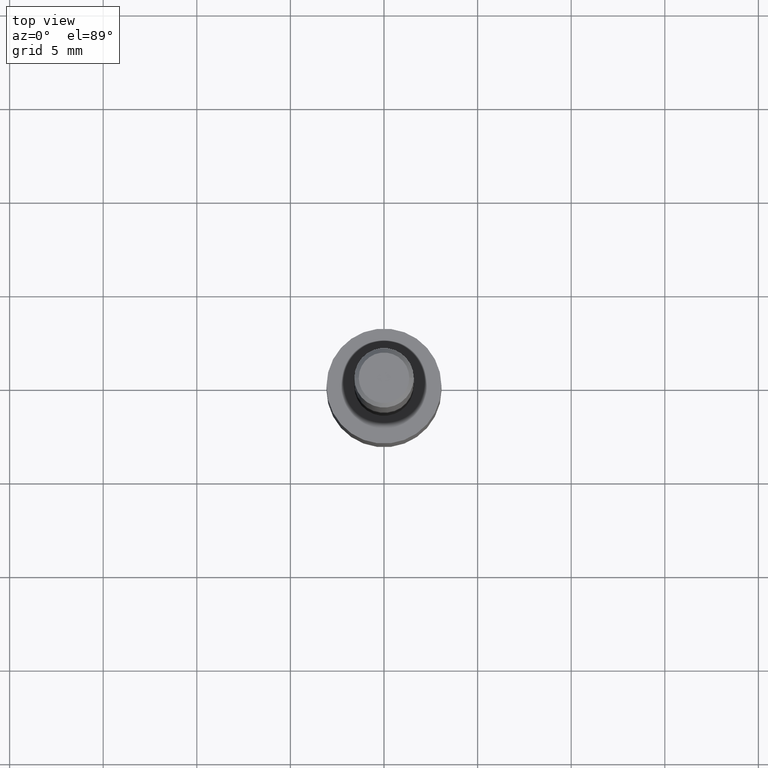
[diagram: clean part render]
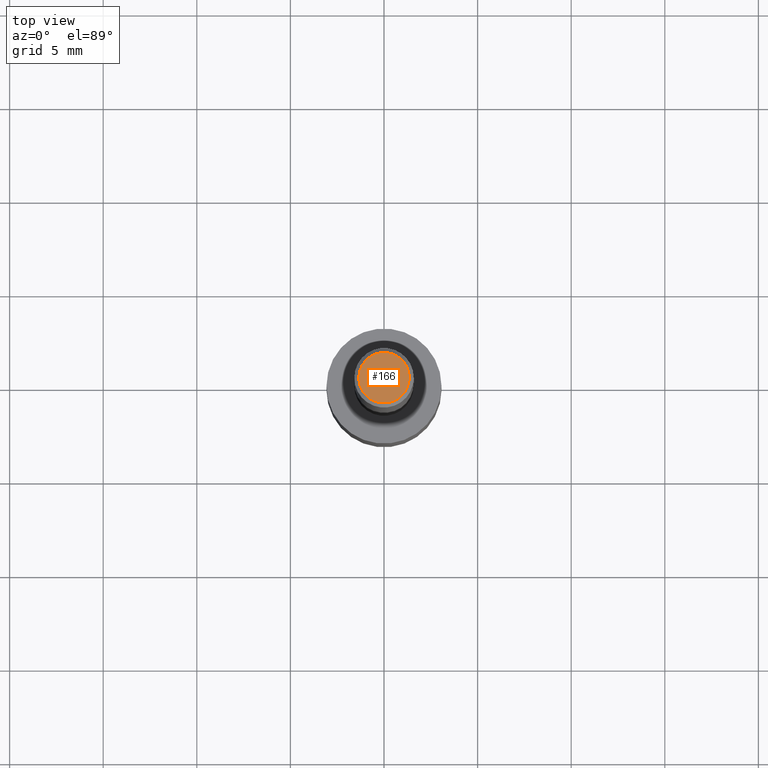
[diagram: same view with one face highlighted and labeled with its STEP entity id]
A machine part, top view. The second image highlights one B-rep face of the part: STEP entity #166.
In plain terms, the highlighted planar face has unit normal (0, -0, -1).
Its self-contained STEP definition (entity closure, byte-faithful):
#17 = DIRECTION ( 'NONE',  ( -1.000000000000000000, 6.982962677686265922E-15, -4.876176775795935793E-29 ) ) ;
#20 = CIRCLE ( 'NONE', #156, 0.05312499999999999861 ) ;
#39 = CIRCLE ( 'NONE', #311, 0.05312499999999999861 ) ;
#46 = EDGE_CURVE ( 'NONE', #270, #275, #39, .T. ) ;
#74 = CARTESIAN_POINT ( 'NONE',  ( -7.487088864773345706E-50, 1.068957861474247695E-35, 3.061616997868395197E-21 ) ) ;
#110 = CARTESIAN_POINT ( 'NONE',  ( -3.743544432386672853E-50, 5.344789307371238476E-36, 1.530808498934197599E-21 ) ) ;
#129 = EDGE_CURVE ( 'NONE', #275, #270, #20, .T. ) ;
#156 = AXIS2_PLACEMENT_3D ( 'NONE', #227, #271, #193 ) ;
#163 = CARTESIAN_POINT ( 'NONE',  ( 0.05312499999999999861, -4.129888592719939842E-16, 3.061617000609493422E-21 ) ) ;
#166 = ADVANCED_FACE ( 'NONE', ( #250 ), #200, .F. ) ;
#188 = DIRECTION ( 'NONE',  ( 1.000000000000000000, -6.982962677686266711E-15, 4.876176628004948512E-29 ) ) ;
#193 = DIRECTION ( 'NONE',  ( 1.000000000000000000, -6.982962677686266711E-15, 4.876176628004948512E-29 ) ) ;
#200 = PLANE ( 'NONE',  #230 ) ;
#202 = EDGE_LOOP ( 'NONE', ( #209, #332 ) ) ;
#209 = ORIENTED_EDGE ( 'NONE', *, *, #46, .T. ) ;
#227 = CARTESIAN_POINT ( 'NONE',  ( -7.487088864773345706E-50, 1.068957861474247695E-35, 3.061616997868395197E-21 ) ) ;
#230 = AXIS2_PLACEMENT_3D ( 'NONE', #110, #296, #17 ) ;
#250 = FACE_OUTER_BOUND ( 'NONE', #202, .T. ) ;
#251 = DIRECTION ( 'NONE',  ( -2.445468806185136597E-29, 3.491481338843145583E-15, 1.000000000000000000 ) ) ;
#270 = VERTEX_POINT ( 'NONE', #320 ) ;
#271 = DIRECTION ( 'NONE',  ( -2.445468806185136597E-29, 3.491481338843145583E-15, 1.000000000000000000 ) ) ;
#275 = VERTEX_POINT ( 'NONE', #163 ) ;
#296 = DIRECTION ( 'NONE',  ( 2.438088387897960049E-29, -3.491481338843145188E-15, -1.000000000000000000 ) ) ;
#311 = AXIS2_PLACEMENT_3D ( 'NONE', #74, #251, #188 ) ;
#320 = CARTESIAN_POINT ( 'NONE',  ( -0.05312499999999999861, 3.873362110279099094E-16, 3.061616995216862494E-21 ) ) ;
#332 = ORIENTED_EDGE ( 'NONE', *, *, #129, .T. ) ;